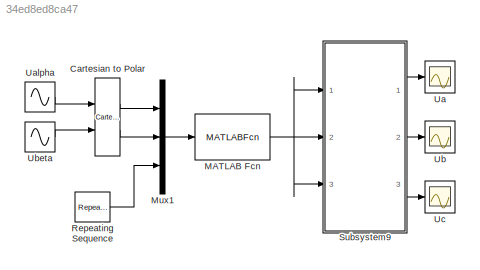
MODEL slx_34ed8ed8ca47
KIND model
CONFIG InitFcn = Vdc=700;
BLOCK [Reference] Cartesian to Polar  REF=simulink_extras/Transformations/Cartesian to
Polar
  Ports = [2, 2]
  SourceBlock = simulink_extras/Transformations/Cartesian to\nPolar
  SourceType = Cart2Polar
BLOCK [MATLABFcn] MATLAB Fcn
  MATLABFcn = svpwm
  Ports = [1, 1]
BLOCK [Mux] Mux1
  DisplayOption = bar
  Inputs = 3
  Ports = [3, 1]
BLOCK [Reference] Repeating Sequence  REF=simulink/Sources/Repeating
Sequence
  Ports = [0, 1]
  SourceBlock = simulink/Sources/Repeating\nSequence
  SourceType = Repeating table
  rep_seq_t = [0 0.0002 0.0004]
  rep_seq_y = [0 0.0002 0]
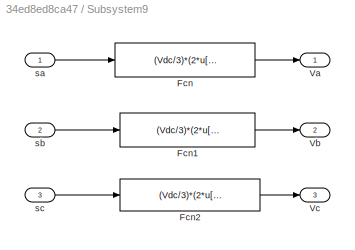
BLOCK [SubSystem] Subsystem9
  Ports = [3, 3]
  RequestExecContextInheritance = off
BLOCK [Fcn] Subsystem9/Fcn
  Expr = (Vdc/3)*(2*u[1]-u[2]-u[3])
BLOCK [Fcn] Subsystem9/Fcn1
  Expr = (Vdc/3)*(2*u[2]-u[1]-u[3])
BLOCK [Fcn] Subsystem9/Fcn2
  Expr = (Vdc/3)*(2*u[3]-u[2]-u[1])
BLOCK [Outport] Subsystem9/Va
  IconDisplay = Port number
BLOCK [Outport] Subsystem9/Vb
  IconDisplay = Port number
  Port = 2
BLOCK [Outport] Subsystem9/Vc
  IconDisplay = Port number
  Port = 3
BLOCK [Inport] Subsystem9/sa
  IconDisplay = Port number
BLOCK [Inport] Subsystem9/sb
  IconDisplay = Port number
  Port = 2
BLOCK [Inport] Subsystem9/sc
  IconDisplay = Port number
  Port = 3
BLOCK [Scope] Ua  
  DataFormat = StructureWithTime
  Floating = off
  LimitDataPoints = off
  NumInputPorts = 1
  Ports = [1]
  SampleInput = on
  SampleTime = 0
  SaveName = Ua
  SaveToWorkspace = on
  ShowLegends = off
  YMax = 500
  YMin = -500
BLOCK [Sin] Ualpha
  Amplitude = 200
  Frequency = 100*pi
  Phase = pi/2
  Ports = [0, 1]
  SampleTime = 0
BLOCK [Scope] Ub
  DataFormat = StructureWithTime
  Floating = off
  LimitDataPoints = off
  NumInputPorts = 1
  Ports = [1]
  SampleInput = on
  SampleTime = 0
  SaveName = Ua1
  ShowLegends = off
  YMax = 500
  YMin = -500
BLOCK [Sin] Ubeta
  Amplitude = 200
  Frequency = 100*pi
  Ports = [0, 1]
  SampleTime = 0
BLOCK [Scope] Uc
  DataFormat = StructureWithTime
  Floating = off
  LimitDataPoints = off
  NumInputPorts = 1
  Ports = [1]
  SampleInput = on
  SampleTime = 0
  SaveName = Ua2
  ShowLegends = off
  YMax = 500
  YMin = -500
LINE Cartesian to Polar:1 -> Mux1:1
LINE Cartesian to Polar:2 -> Mux1:2
NET MATLAB Fcn:1 -> Subsystem9:1, Subsystem9:2, Subsystem9:3
LINE Mux1:1 -> MATLAB Fcn:1
LINE Repeating Sequence:1 -> Mux1:3
LINE Subsystem9/Fcn1:1 -> Subsystem9/Vb:1
LINE Subsystem9/Fcn2:1 -> Subsystem9/Vc:1
LINE Subsystem9/Fcn:1 -> Subsystem9/Va:1
LINE Subsystem9/sa:1 -> Subsystem9/Fcn:1
LINE Subsystem9/sb:1 -> Subsystem9/Fcn1:1
LINE Subsystem9/sc:1 -> Subsystem9/Fcn2:1
LINE Subsystem9:1 -> Ua  :1
LINE Subsystem9:2 -> Ub:1
LINE Subsystem9:3 -> Uc:1
LINE Ualpha:1 -> Cartesian to Polar:1
LINE Ubeta:1 -> Cartesian to Polar:2
note: NET lines group one-source signal fan-out (src -> all destinations, sorted); 1:1 wires keep LINE
